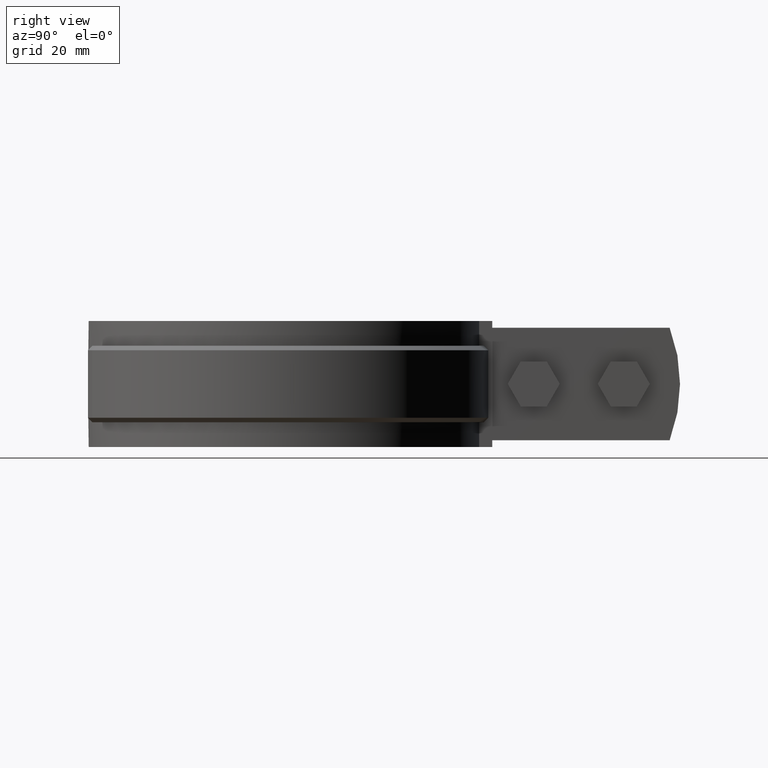
[diagram: clean part render]
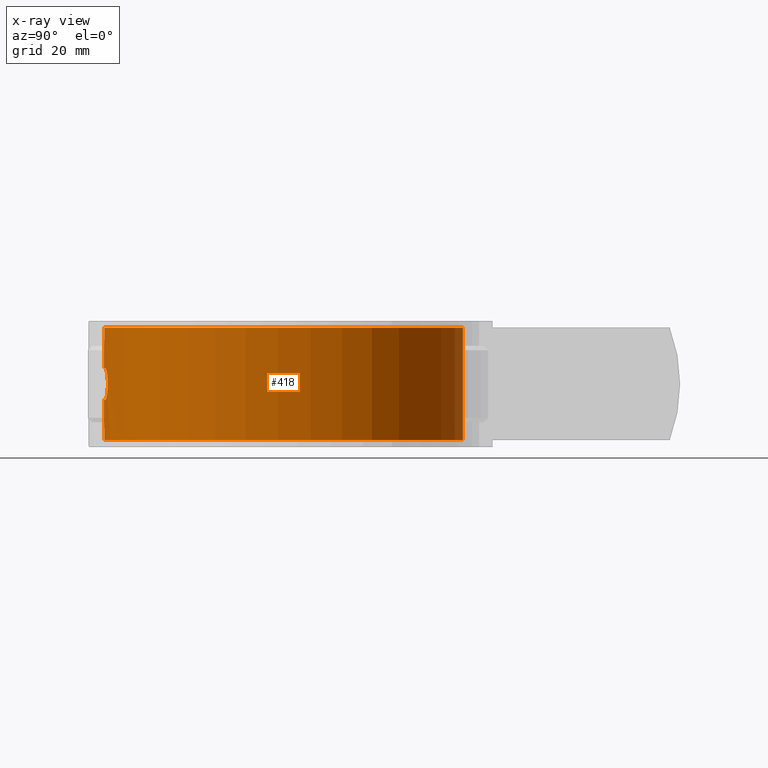
[diagram: x-ray — body ghosted, one internal face saturated and labeled with its STEP entity id]
A machine part, right view, then the same camera in x-ray: the body is ghosted and one INTERNAL B-rep face — a face not visible from any outside direction — is saturated and labeled: STEP entity #418.
In plain terms, the highlighted cylindrical surface (partial cylindrical patch) has radius 40.15 mm, axis along (0, 0, -1).
Its self-contained STEP definition (entity closure, byte-faithful):
#418 = ADVANCED_FACE( '', ( #729, #730 ), #731, .T. );
#729 = FACE_OUTER_BOUND( '', #1677, .T. );
#730 = FACE_BOUND( '', #1678, .T. );
#731 = CYLINDRICAL_SURFACE( '', #1679, 40.1500000000000 );
#1677 = EDGE_LOOP( '', ( #3277, #3278, #3279, #3280 ) );
#1678 = EDGE_LOOP( '', ( #3281, #3282, #3283, #3284, #3285, #3286, #3287, #3288, #3289, #3290, #3291, #3292, #3293, #3294, #3295, #3296 ) );
#1679 = AXIS2_PLACEMENT_3D( '', #3297, #3298, #3299 );
#3277 = ORIENTED_EDGE( '', *, *, #4273, .F. );
#3278 = ORIENTED_EDGE( '', *, *, #4271, .F. );
#3279 = ORIENTED_EDGE( '', *, *, #4274, .T. );
#3280 = ORIENTED_EDGE( '', *, *, #4107, .T. );
#3281 = ORIENTED_EDGE( '', *, *, #4151, .F. );
#3282 = ORIENTED_EDGE( '', *, *, #4267, .F. );
#3283 = ORIENTED_EDGE( '', *, *, #4115, .F. );
#3284 = ORIENTED_EDGE( '', *, *, #4266, .F. );
#3285 = ORIENTED_EDGE( '', *, *, #4265, .F. );
#3286 = ORIENTED_EDGE( '', *, *, #4263, .F. );
#3287 = ORIENTED_EDGE( '', *, *, #4261, .F. );
#3288 = ORIENTED_EDGE( '', *, *, #4259, .F. );
#3289 = ORIENTED_EDGE( '', *, *, #4257, .F. );
#3290 = ORIENTED_EDGE( '', *, *, #4255, .F. );
#3291 = ORIENTED_EDGE( '', *, *, #4253, .F. );
#3292 = ORIENTED_EDGE( '', *, *, #4135, .F. );
#3293 = ORIENTED_EDGE( '', *, *, #4132, .F. );
#3294 = ORIENTED_EDGE( '', *, *, #4126, .F. );
#3295 = ORIENTED_EDGE( '', *, *, #4123, .F. );
#3296 = ORIENTED_EDGE( '', *, *, #4129, .F. );
#3297 = CARTESIAN_POINT( '', ( -3.46944695195361E-015, 0.000000000000000, -14.0000000000000 ) );
#3298 = DIRECTION( '', ( 0.000000000000000, 0.000000000000000, -1.00000000000000 ) );
#3299 = DIRECTION( '', ( 1.00000000000000, -6.07153216591882E-017, 0.000000000000000 ) );
#4107 = EDGE_CURVE( '', #4718, #4716, #4719, .T. );
#4115 = EDGE_CURVE( '', #4731, #4726, #4733, .T. );
#4123 = EDGE_CURVE( '', #4747, #4742, #4749, .T. );
#4126 = EDGE_CURVE( '', #4742, #4750, #4754, .F. );
#4129 = EDGE_CURVE( '', #4757, #4747, #4759, .F. );
#4132 = EDGE_CURVE( '', #4750, #4760, #4764, .T. );
#4135 = EDGE_CURVE( '', #4760, #4765, #4769, .F. );
#4151 = EDGE_CURVE( '', #4796, #4757, #4798, .T. );
#4253 = EDGE_CURVE( '', #4765, #4964, #4966, .T. );
#4255 = EDGE_CURVE( '', #4964, #4967, #4969, .F. );
#4257 = EDGE_CURVE( '', #4967, #4970, #4972, .T. );
#4259 = EDGE_CURVE( '', #4970, #4973, #4975, .F. );
#4261 = EDGE_CURVE( '', #4973, #4976, #4978, .T. );
#4263 = EDGE_CURVE( '', #4976, #4979, #4981, .F. );
#4265 = EDGE_CURVE( '', #4979, #4982, #4984, .T. );
#4266 = EDGE_CURVE( '', #4982, #4731, #4985, .F. );
#4267 = EDGE_CURVE( '', #4726, #4796, #4986, .F. );
#4271 = EDGE_CURVE( '', #4990, #4992, #4993, .T. );
#4273 = EDGE_CURVE( '', #4992, #4716, #4995, .T. );
#4274 = EDGE_CURVE( '', #4990, #4718, #4996, .T. );
#4716 = VERTEX_POINT( '', #6643 );
#4718 = VERTEX_POINT( '', #6645 );
#4719 = CIRCLE( '', #6646, 40.1500000000000 );
#4726 = VERTEX_POINT( '', #6656 );
#4731 = VERTEX_POINT( '', #6671 );
#4733 = B_SPLINE_CURVE_WITH_KNOTS( '', 3, ( #6674, #6675, #6676, #6677, #6678, #6679, #6680, #6681, #6682, #6683 ), .UNSPECIFIED., .F., .F., ( 4, 2, 2, 2, 4 ), ( 0.000000000000000, 0.000671575441678884, 0.00134315088335777, 0.00201472632503665, 0.00268630176671554 ), .UNSPECIFIED. );
#4742 = VERTEX_POINT( '', #6694 );
#4747 = VERTEX_POINT( '', #6733 );
#4749 = B_SPLINE_CURVE_WITH_KNOTS( '', 3, ( #6736, #6737, #6738, #6739, #6740, #6741, #6742, #6743, #6744, #6745, #6746, #6747, #6748, #6749, #6750, #6751, #6752, #6753, #6754, #6755, #6756, #6757, #6758, #6759, #6760, #6761, #6762, #6763, #6764, #6765, #6766, #6767, #6768, #6769 ), .UNSPECIFIED., .F., .F., ( 4, 2, 2, 2, 2, 2, 2, 2, 2, 2, 2, 2, 2, 2, 2, 2, 4 ), ( 0.000000000000000, 0.000688337356429963, 0.00137667471285993, 0.00206501206928989, 0.00275334942571985, 0.00344168678214981, 0.00413002413857978, 0.00481836149500974, 0.00550669885143970, 0.00619503620786966, 0.00688337356429963, 0.00757171092072959, 0.00826004827715955, 0.00894838563358951, 0.00963672299001948, 0.0103250603464494, 0.0110133977028794 ), .UNSPECIFIED. );
#4750 = VERTEX_POINT( '', #6770 );
#4754 = CIRCLE( '', #6775, 40.1500000000000 );
#4757 = VERTEX_POINT( '', #6778 );
#4759 = CIRCLE( '', #6781, 40.1500000000000 );
#4760 = VERTEX_POINT( '', #6782 );
#4764 = B_SPLINE_CURVE_WITH_KNOTS( '', 3, ( #6792, #6793, #6794, #6795, #6796, #6797 ), .UNSPECIFIED., .F., .F., ( 4, 2, 4 ), ( 0.000000000000000, 0.000335897798747016, 0.000671795597494033 ), .UNSPECIFIED. );
#4765 = VERTEX_POINT( '', #6798 );
#4769 = ELLIPSE( '', #6803, 182.905648859906, 40.1500000000000 );
#4796 = VERTEX_POINT( '', #7005 );
#4798 = B_SPLINE_CURVE_WITH_KNOTS( '', 3, ( #7008, #7009, #7010, #7011, #7012, #7013 ), .UNSPECIFIED., .F., .F., ( 4, 2, 4 ), ( 0.000000000000000, 0.000335898885575027, 0.000671797771150054 ), .UNSPECIFIED. );
#4964 = VERTEX_POINT( '', #7535 );
#4966 = B_SPLINE_CURVE_WITH_KNOTS( '', 3, ( #7538, #7539, #7540, #7541, #7542, #7543, #7544, #7545, #7546, #7547 ), .UNSPECIFIED., .F., .F., ( 4, 2, 2, 2, 4 ), ( 0.000000000000000, 0.000671575441678884, 0.00134315088335777, 0.00201472632503665, 0.00268630176671554 ), .UNSPECIFIED. );
#4967 = VERTEX_POINT( '', #7548 );
#4969 = ELLIPSE( '', #7551, 182.905742164324, 40.1500000000000 );
#4970 = VERTEX_POINT( '', #7552 );
#4972 = B_SPLINE_CURVE_WITH_KNOTS( '', 3, ( #7555, #7556, #7557, #7558, #7559, #7560 ), .UNSPECIFIED., .F., .F., ( 4, 2, 4 ), ( 0.000000000000000, 0.000335898885575013, 0.000671797771150027 ), .UNSPECIFIED. );
#4973 = VERTEX_POINT( '', #7561 );
#4975 = CIRCLE( '', #7564, 40.1500000000000 );
#4976 = VERTEX_POINT( '', #7565 );
#4978 = B_SPLINE_CURVE_WITH_KNOTS( '', 3, ( #7568, #7569, #7570, #7571, #7572, #7573, #7574, #7575, #7576, #7577, #7578, #7579, #7580, #7581, #7582, #7583, #7584, #7585, #7586, #7587, #7588, #7589, #7590, #7591, #7592, #7593, #7594, #7595, #7596, #7597, #7598, #7599, #7600, #7601 ), .UNSPECIFIED., .F., .F., ( 4, 2, 2, 2, 2, 2, 2, 2, 2, 2, 2, 2, 2, 2, 2, 2, 4 ), ( 0.000000000000000, 0.000688337329262026, 0.00137667465852405, 0.00206501198778608, 0.00275334931704810, 0.00344168664631013, 0.00413002397557216, 0.00481836130483418, 0.00550669863409621, 0.00619503596335823, 0.00688337329262026, 0.00757171062188229, 0.00826004795114431, 0.00894838528040634, 0.00963672260966836, 0.0103250599389304, 0.0110133972681924 ), .UNSPECIFIED. );
#4979 = VERTEX_POINT( '', #7602 );
#4981 = CIRCLE( '', #7605, 40.1500000000000 );
#4982 = VERTEX_POINT( '', #7606 );
#4984 = B_SPLINE_CURVE_WITH_KNOTS( '', 3, ( #7609, #7610, #7611, #7612, #7613, #7614 ), .UNSPECIFIED., .F., .F., ( 4, 2, 4 ), ( 0.000000000000000, 0.000335897731122379, 0.000671795462244758 ), .UNSPECIFIED. );
#4985 = ELLIPSE( '', #7615, 182.905648859919, 40.1500000000000 );
#4986 = ELLIPSE( '', #7616, 182.905742164363, 40.1500000000000 );
#4990 = VERTEX_POINT( '', #7622 );
#4992 = VERTEX_POINT( '', #7624 );
#4993 = CIRCLE( '', #7625, 40.1500000000000 );
#4995 = LINE( '', #7627, #7628 );
#4996 = LINE( '', #7629, #7630 );
#6643 = CARTESIAN_POINT( '', ( -6.51332560834300, 39.6181661554356, 12.5000000000000 ) );
#6645 = CARTESIAN_POINT( '', ( 6.51332560834299, 39.6181661554356, 12.5000000000000 ) );
#6646 = AXIS2_PLACEMENT_3D( '', #8284, #8285, #8286 );
#6656 = CARTESIAN_POINT( '', ( -0.975610000000008, -40.1381450135392, 4.71951199999999 ) );
#6671 = CARTESIAN_POINT( '', ( 0.975609757981830, -40.1381450194217, 4.71951218674745 ) );
#6674 = CARTESIAN_POINT( '', ( 0.975609757981830, -40.1381450194217, 4.71951218674745 ) );
#6675 = CARTESIAN_POINT( '', ( 0.925763103201880, -40.1393566071218, 4.94105278453084 ) );
#6676 = CARTESIAN_POINT( '', ( 0.802005694053933, -40.1423807442753, 5.13901842955353 ) );
#6677 = CARTESIAN_POINT( '', ( 0.447394136195131, -40.1478988670461, 5.42271131765148 ) );
#6678 = CARTESIAN_POINT( '', ( 0.227081605828000, -40.1500000027403, 5.50000009076311 ) );
#6679 = CARTESIAN_POINT( '', ( -0.227082574833360, -40.1499999972597, 5.49999991610399 ) );
#6680 = CARTESIAN_POINT( '', ( -0.447406558810668, -40.1478987000226, 5.42270368064464 ) );
#6681 = CARTESIAN_POINT( '', ( -0.802005172077630, -40.1423807261117, 5.13901686586142 ) );
#6682 = CARTESIAN_POINT( '', ( -0.925763382732424, -40.1393566006280, 4.94105262907630 ) );
#6683 = CARTESIAN_POINT( '', ( -0.975610000000008, -40.1381450135391, 4.71951199999999 ) );
#6694 = CARTESIAN_POINT( '', ( -4.99999999999995, -39.8374509726714, -3.49999999999997 ) );
#6733 = CARTESIAN_POINT( '', ( -4.99999999999995, -39.8374509726714, 3.49999999999999 ) );
#6736 = CARTESIAN_POINT( '', ( -4.99999999999995, -39.8374509726714, 3.49999999999999 ) );
#6737 = CARTESIAN_POINT( '', ( -5.23095860494481, -39.8084633493038, 3.49999999999999 ) );
#6738 = CARTESIAN_POINT( '', ( -5.45781297076317, -39.7779524642130, 3.47736556748964 ) );
#6739 = CARTESIAN_POINT( '', ( -5.90372421837639, -39.7142199347082, 3.38894468494546 ) );
#6740 = CARTESIAN_POINT( '', ( -6.12501644056398, -39.6806304739925, 3.32213368201290 ) );
#6741 = CARTESIAN_POINT( '', ( -6.54749251271768, -39.6131115037260, 3.14761870064423 ) );
#6742 = CARTESIAN_POINT( '', ( -6.74782653425953, -39.5793683268156, 3.04087849271292 ) );
#6743 = CARTESIAN_POINT( '', ( -7.12705538734701, -39.5128414770676, 2.78881190203174 ) );
#6744 = CARTESIAN_POINT( '', ( -7.30699771686769, -39.4798342861366, 2.64190872861822 ) );
#6745 = CARTESIAN_POINT( '', ( -7.63008020934945, -39.4186682536842, 2.32047593285885 ) );
#6746 = CARTESIAN_POINT( '', ( -7.77520246741426, -39.3901746414896, 2.14501047192486 ) );
#6747 = CARTESIAN_POINT( '', ( -8.03185666339944, -39.3386439806323, 1.76370597515169 ) );
#6748 = CARTESIAN_POINT( '', ( -8.14181611065923, -39.3159182752970, 1.55925557516011 ) );
#6749 = CARTESIAN_POINT( '', ( -8.31798764170714, -39.2790234222037, 1.13721164485082 ) );
#6750 = CARTESIAN_POINT( '', ( -8.38574167511883, -39.2645390128848, 0.916882287493008 ) );
#6751 = CARTESIAN_POINT( '', ( -8.47719385698053, -39.2448961222648, 0.461564622353227 ) );
#6752 = CARTESIAN_POINT( '', ( -8.49978618145731, -39.2399813317577, 0.232891640253096 ) );
#6753 = CARTESIAN_POINT( '', ( -8.50021082580472, -39.2398893469905, -0.226418737266360 ) );
#6754 = CARTESIAN_POINT( '', ( -8.47731854301145, -39.2448684643871, -0.459702949250304 ) );
#6755 = CARTESIAN_POINT( '', ( -8.38706339909591, -39.2642559843718, -0.911522981827281 ) );
#6756 = CARTESIAN_POINT( '', ( -8.32031352874220, -39.2785313050527, -1.13069012075303 ) );
#6757 = CARTESIAN_POINT( '', ( -8.14371721399384, -39.3155250332114, -1.55562828014226 ) );
#6758 = CARTESIAN_POINT( '', ( -8.03342513170301, -39.3383199762391, -1.76080986097329 ) );
#6759 = CARTESIAN_POINT( '', ( -7.77898464578659, -39.3894241615725, -2.13994552533915 ) );
#6760 = CARTESIAN_POINT( '', ( -7.63379203900638, -39.4179573308168, -2.31653087494198 ) );
#6761 = CARTESIAN_POINT( '', ( -7.30708660946900, -39.4798255607926, -2.64206955157895 ) );
#6762 = CARTESIAN_POINT( '', ( -7.13061900667860, -39.5121959119356, -2.78605609428599 ) );
#6763 = CARTESIAN_POINT( '', ( -6.75245701559202, -39.5785759907323, -3.03817952911607 ) );
#6764 = CARTESIAN_POINT( '', ( -6.54837063110577, -39.6129652578209, -3.14717295202814 ) );
#6765 = CARTESIAN_POINT( '', ( -6.12629712903813, -39.6804316751518, -3.32168725478999 ) );
#6766 = CARTESIAN_POINT( '', ( -5.90899761065163, -39.7134392243431, -3.38758058043028 ) );
#6767 = CARTESIAN_POINT( '', ( -5.46185115940374, -39.7774017464791, -3.47687669231662 ) );
#6768 = CARTESIAN_POINT( '', ( -5.23094629206818, -39.8084648946934, -3.49999999999999 ) );
#6769 = CARTESIAN_POINT( '', ( -4.99999999999995, -39.8374509726714, -3.49999999999999 ) );
#6770 = CARTESIAN_POINT( '', ( -1.64999999999996, -40.1160815633830, -3.50000000000000 ) );
#6775 = AXIS2_PLACEMENT_3D( '', #8309, #8310, #8311 );
#6778 = CARTESIAN_POINT( '', ( -1.65000998557366, -40.1160811526688, 3.50000000000000 ) );
#6781 = AXIS2_PLACEMENT_3D( '', #8316, #8317, #8318 );
#6782 = CARTESIAN_POINT( '', ( -1.16219500000001, -40.1331758372294, -3.89024399999998 ) );
#6792 = CARTESIAN_POINT( '', ( -1.64999999999996, -40.1160815633830, -3.50000000000000 ) );
#6793 = CARTESIAN_POINT( '', ( -1.53651884766715, -40.1207491154981, -3.49999999951295 ) );
#6794 = CARTESIAN_POINT( '', ( -1.42638050992233, -40.1247530663931, -3.53860710319741 ) );
#6795 = CARTESIAN_POINT( '', ( -1.24905299688651, -40.1306645423307, -3.68042118917920 ) );
#6796 = CARTESIAN_POINT( '', ( -1.18712650433726, -40.1324538592380, -3.77943731183594 ) );
#6797 = CARTESIAN_POINT( '', ( -1.16219500000001, -40.1331758372295, -3.89024399999998 ) );
#6798 = CARTESIAN_POINT( '', ( -0.975609757981836, -40.1381450194217, -4.71951218674743 ) );
#6803 = AXIS2_PLACEMENT_3D( '', #8324, #8325, #8326 );
#7005 = CARTESIAN_POINT( '', ( -1.16219512100908, -40.1331758337252, 3.89024390662641 ) );
#7008 = CARTESIAN_POINT( '', ( -1.16219512100910, -40.1331758337252, 3.89024390662629 ) );
#7009 = CARTESIAN_POINT( '', ( -1.18712661974119, -40.1324538558208, 3.77943724115345 ) );
#7010 = CARTESIAN_POINT( '', ( -1.24904982974932, -40.1306646447970, 3.68042431142770 ) );
#7011 = CARTESIAN_POINT( '', ( -1.42638086073692, -40.1247530578130, 3.53860630529696 ) );
#7012 = CARTESIAN_POINT( '', ( -1.53651887567480, -40.1207491143462, 3.50000000000001 ) );
#7013 = CARTESIAN_POINT( '', ( -1.65000000000002, -40.1160815633831, 3.50000000000000 ) );
#7535 = CARTESIAN_POINT( '', ( 0.975609999999998, -40.1381450135392, -4.71951199999999 ) );
#7538 = CARTESIAN_POINT( '', ( -0.975609757981836, -40.1381450194217, -4.71951218674743 ) );
#7539 = CARTESIAN_POINT( '', ( -0.925763103201890, -40.1393566071217, -4.94105278453082 ) );
#7540 = CARTESIAN_POINT( '', ( -0.802005694053943, -40.1423807442753, -5.13901842955351 ) );
#7541 = CARTESIAN_POINT( '', ( -0.447394136195146, -40.1478988670461, -5.42271131765146 ) );
#7542 = CARTESIAN_POINT( '', ( -0.227081605828018, -40.1500000027403, -5.50000009076310 ) );
#7543 = CARTESIAN_POINT( '', ( 0.227082574833341, -40.1499999972597, -5.49999991610398 ) );
#7544 = CARTESIAN_POINT( '', ( 0.447406558810649, -40.1478987000226, -5.42270368064463 ) );
#7545 = CARTESIAN_POINT( '', ( 0.802005172077614, -40.1423807261117, -5.13901686586142 ) );
#7546 = CARTESIAN_POINT( '', ( 0.925763382732411, -40.1393566006280, -4.94105262907630 ) );
#7547 = CARTESIAN_POINT( '', ( 0.975609999999998, -40.1381450135391, -4.71951199999999 ) );
#7548 = CARTESIAN_POINT( '', ( 1.16219512100914, -40.1331758337252, -3.89024390662629 ) );
#7551 = AXIS2_PLACEMENT_3D( '', #8472, #8473, #8474 );
#7552 = CARTESIAN_POINT( '', ( 1.65000000000002, -40.1160815633830, -3.49999999999997 ) );
#7555 = CARTESIAN_POINT( '', ( 1.16219512100914, -40.1331758337252, -3.89024390662629 ) );
#7556 = CARTESIAN_POINT( '', ( 1.18712661974122, -40.1324538558208, -3.77943724115345 ) );
#7557 = CARTESIAN_POINT( '', ( 1.24904982974935, -40.1306646447970, -3.68042431142770 ) );
#7558 = CARTESIAN_POINT( '', ( 1.42638086073694, -40.1247530578130, -3.53860630529697 ) );
#7559 = CARTESIAN_POINT( '', ( 1.53651887567481, -40.1207491143462, -3.50000000000002 ) );
#7560 = CARTESIAN_POINT( '', ( 1.65000000000003, -40.1160815633831, -3.50000000000002 ) );
#7561 = CARTESIAN_POINT( '', ( 5.00000044733089, -39.8374509165269, -3.49999999999998 ) );
#7564 = AXIS2_PLACEMENT_3D( '', #8477, #8478, #8479 );
#7565 = CARTESIAN_POINT( '', ( 5.00000000000005, -39.8374509726714, 3.50000000000000 ) );
#7568 = CARTESIAN_POINT( '', ( 5.00000044733089, -39.8374509165269, -3.49999999999998 ) );
#7569 = CARTESIAN_POINT( '', ( 5.23095904284813, -39.8084632917082, -3.49999997077357 ) );
#7570 = CARTESIAN_POINT( '', ( 5.45781339659013, -39.7779524057066, -3.47736551055169 ) );
#7571 = CARTESIAN_POINT( '', ( 5.90372461557894, -39.7142198755819, -3.38894457868282 ) );
#7572 = CARTESIAN_POINT( '', ( 6.12501682065865, -39.6806304152252, -3.32213355311184 ) );
#7573 = CARTESIAN_POINT( '', ( 6.54749285677821, -39.6131114467607, -3.14761853041378 ) );
#7574 = CARTESIAN_POINT( '', ( 6.74782685899010, -39.5793682713514, -3.04087830510304 ) );
#7575 = CARTESIAN_POINT( '', ( 7.12705567051450, -39.5128414258903, -2.78881168558285 ) );
#7576 = CARTESIAN_POINT( '', ( 7.30699797861346, -39.4798342376001, -2.64190849999461 ) );
#7577 = CARTESIAN_POINT( '', ( 7.63008042726408, -39.4186682114113, -2.32047568427146 ) );
#7578 = CARTESIAN_POINT( '', ( 7.77520266334603, -39.3901746027391, -2.14501021701764 ) );
#7579 = CARTESIAN_POINT( '', ( 8.03185681449028, -39.3386439497080, -1.76370571449666 ) );
#7580 = CARTESIAN_POINT( '', ( 8.14181624133897, -39.3159182481864, -1.55925531113455 ) );
#7581 = CARTESIAN_POINT( '', ( 8.31798773081203, -39.2790234032857, -1.13721138235155 ) );
#7582 = CARTESIAN_POINT( '', ( 8.38574174355353, -39.2645389982473, -0.916882032775541 ) );
#7583 = CARTESIAN_POINT( '', ( 8.47719388937390, -39.2448961152456, -0.461564375073826 ) );
#7584 = CARTESIAN_POINT( '', ( 8.49978619667143, -39.2399813284621, -0.232891399735746 ) );
#7585 = CARTESIAN_POINT( '', ( 8.50021081101746, -39.2398893501937, 0.226418958243875 ) );
#7586 = CARTESIAN_POINT( '', ( 8.47731851481217, -39.2448684704921, 0.459703157574262 ) );
#7587 = CARTESIAN_POINT( '', ( 8.38706334822710, -39.2642559952513, 0.911523169321695 ) );
#7588 = CARTESIAN_POINT( '', ( 8.32031346867800, -39.2785313177909, 1.13069029547546 ) );
#7589 = CARTESIAN_POINT( '', ( 8.14371714121278, -39.3155250483020, 1.55562842508176 ) );
#7590 = CARTESIAN_POINT( '', ( 8.03342505326526, -39.3383199922666, 1.76080999477708 ) );
#7591 = CARTESIAN_POINT( '', ( 7.77898456164724, -39.3894241781985, 2.13994563378791 ) );
#7592 = CARTESIAN_POINT( '', ( 7.63379195948781, -39.4179573462202, 2.31653096462965 ) );
#7593 = CARTESIAN_POINT( '', ( 7.30708652816379, -39.4798255758444, 2.64206962214095 ) );
#7594 = CARTESIAN_POINT( '', ( 7.13061892723626, -39.5121959262467, 2.78605615434058 ) );
#7595 = CARTESIAN_POINT( '', ( 6.75245694642356, -39.5785760025074, 3.03817956814159 ) );
#7596 = CARTESIAN_POINT( '', ( 6.54837057172785, -39.6129652676105, 3.14717298071496 ) );
#7597 = CARTESIAN_POINT( '', ( 6.12629707910309, -39.6804316828354, 3.32168727130081 ) );
#7598 = CARTESIAN_POINT( '', ( 5.90899756837399, -39.7134392305702, 3.38758059101687 ) );
#7599 = CARTESIAN_POINT( '', ( 5.46185113913603, -39.7774017491988, 3.47687669422055 ) );
#7600 = CARTESIAN_POINT( '', ( 5.23094628247947, -39.8084648958969, 3.50000000000001 ) );
#7601 = CARTESIAN_POINT( '', ( 5.00000000000005, -39.8374509726714, 3.50000000000000 ) );
#7602 = CARTESIAN_POINT( '', ( 1.64999986672940, -40.1160815688645, 3.50000000000001 ) );
#7605 = AXIS2_PLACEMENT_3D( '', #8482, #8483, #8484 );
#7606 = CARTESIAN_POINT( '', ( 1.16219499999999, -40.1331758372294, 3.89024400000000 ) );
#7609 = CARTESIAN_POINT( '', ( 1.64999986672940, -40.1160815688645, 3.50000000000001 ) );
#7610 = CARTESIAN_POINT( '', ( 1.53651873722581, -40.1207491196630, 3.50000002973918 ) );
#7611 = CARTESIAN_POINT( '', ( 1.42638043026160, -40.1247530691606, 3.53860714808859 ) );
#7612 = CARTESIAN_POINT( '', ( 1.24905297538508, -40.1306645429356, 3.68042122519043 ) );
#7613 = CARTESIAN_POINT( '', ( 1.18712649931503, -40.1324538593834, 3.77943733415696 ) );
#7614 = CARTESIAN_POINT( '', ( 1.16219499999999, -40.1331758372295, 3.89024400000000 ) );
#7615 = AXIS2_PLACEMENT_3D( '', #8486, #8487, #8488 );
#7616 = AXIS2_PLACEMENT_3D( '', #8489, #8490, #8491 );
#7622 = CARTESIAN_POINT( '', ( 6.51332560834300, 39.6181661554356, -12.5000000000000 ) );
#7624 = CARTESIAN_POINT( '', ( -6.51332560834300, 39.6181661554356, -12.5000000000000 ) );
#7625 = AXIS2_PLACEMENT_3D( '', #8497, #8498, #8499 );
#7627 = CARTESIAN_POINT( '', ( -6.51332560834300, 39.6181661554356, -14.0000000000000 ) );
#7628 = VECTOR( '', #8503, 1000.00000000000 );
#7629 = CARTESIAN_POINT( '', ( 6.51332560834300, 39.6181661554356, -14.0000000000000 ) );
#7630 = VECTOR( '', #8504, 1000.00000000000 );
#8284 = CARTESIAN_POINT( '', ( -3.46944695195361E-015, 0.000000000000000, 12.5000000000000 ) );
#8285 = DIRECTION( '', ( 0.000000000000000, 0.000000000000000, -1.00000000000000 ) );
#8286 = DIRECTION( '', ( 1.00000000000000, 0.000000000000000, 0.000000000000000 ) );
#8309 = CARTESIAN_POINT( '', ( 0.000000000000000, 0.000000000000000, -3.49999999999998 ) );
#8310 = DIRECTION( '', ( -1.29456975819164E-016, -3.55098422942279E-017, -1.00000000000000 ) );
#8311 = DIRECTION( '', ( -1.00000000000000, 0.000000000000000, 1.29456975819164E-016 ) );
#8316 = CARTESIAN_POINT( '', ( 0.000000000000000, 0.000000000000000, 3.50000000000000 ) );
#8317 = DIRECTION( '', ( 1.29456975819168E-016, 3.55098422942279E-017, 1.00000000000000 ) );
#8318 = DIRECTION( '', ( 1.00000000000000, 0.000000000000000, -1.29456975819168E-016 ) );
#8324 = CARTESIAN_POINT( '', ( 0.000000000000000, 0.000000000000000, -9.05555787944973 ) );
#8325 = DIRECTION( '', ( -0.975609781292646, -2.32368383571285E-017, -0.219512083143765 ) );
#8326 = DIRECTION( '', ( -0.219512083143765, -5.22828582826415E-018, 0.975609781292646 ) );
#8472 = CARTESIAN_POINT( '', ( 0.000000000000000, 0.000000000000000, -9.05556109223546 ) );
#8473 = DIRECTION( '', ( 0.975609806487710, 7.64716382401869E-018, -0.219511971165612 ) );
#8474 = DIRECTION( '', ( 0.219511971165612, 1.72061001608828E-018, 0.975609806487710 ) );
#8477 = CARTESIAN_POINT( '', ( 0.000000000000000, 0.000000000000000, -3.49999999999998 ) );
#8478 = DIRECTION( '', ( -1.29456975819165E-016, -3.55098422942279E-017, -1.00000000000000 ) );
#8479 = DIRECTION( '', ( -1.00000000000000, 0.000000000000000, 1.29456975819165E-016 ) );
#8482 = CARTESIAN_POINT( '', ( 0.000000000000000, 0.000000000000000, 3.50000000000000 ) );
#8483 = DIRECTION( '', ( 1.29456975819166E-016, 3.55098422942279E-017, 1.00000000000000 ) );
#8484 = DIRECTION( '', ( 1.00000000000000, 0.000000000000000, -1.29456975819166E-016 ) );
#8486 = CARTESIAN_POINT( '', ( 0.000000000000000, 0.000000000000000, 9.05555787945005 ) );
#8487 = DIRECTION( '', ( 0.975609781292650, 2.32368383571280E-017, 0.219512083143749 ) );
#8488 = DIRECTION( '', ( -0.219512083143749, -5.22828582826365E-018, 0.975609781292650 ) );
#8489 = CARTESIAN_POINT( '', ( 0.000000000000000, 0.000000000000000, 9.05556109223649 ) );
#8490 = DIRECTION( '', ( -0.975609806487721, -7.64716382402052E-018, 0.219511971165565 ) );
#8491 = DIRECTION( '', ( 0.219511971165565, 1.72061001608831E-018, 0.975609806487721 ) );
#8497 = CARTESIAN_POINT( '', ( -3.46944695195361E-015, 0.000000000000000, -12.5000000000000 ) );
#8498 = DIRECTION( '', ( 0.000000000000000, 0.000000000000000, -1.00000000000000 ) );
#8499 = DIRECTION( '', ( 1.00000000000000, 0.000000000000000, 0.000000000000000 ) );
#8503 = DIRECTION( '', ( 0.000000000000000, 0.000000000000000, 1.00000000000000 ) );
#8504 = DIRECTION( '', ( 0.000000000000000, 0.000000000000000, 1.00000000000000 ) );